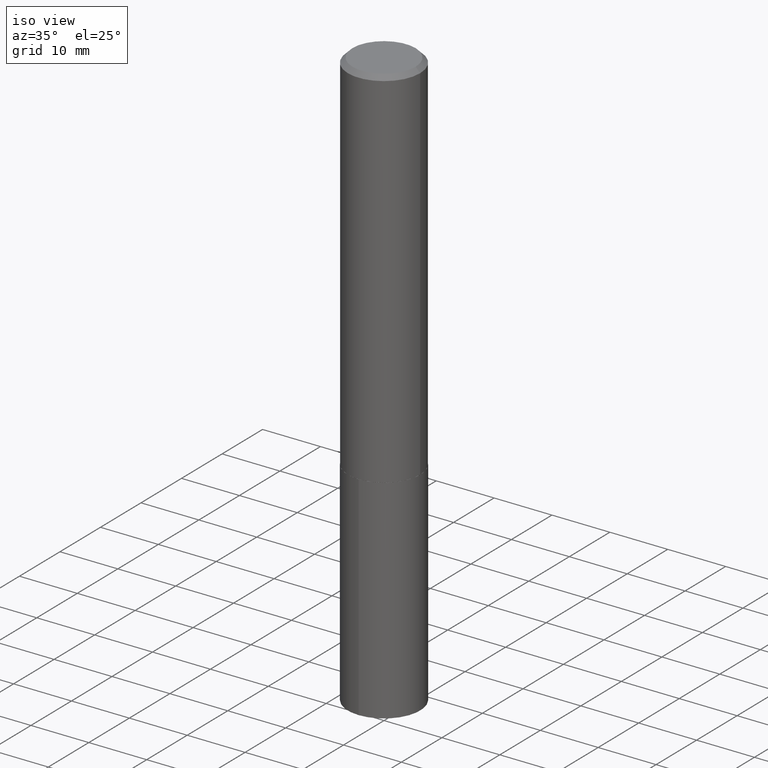
[diagram: clean part render]
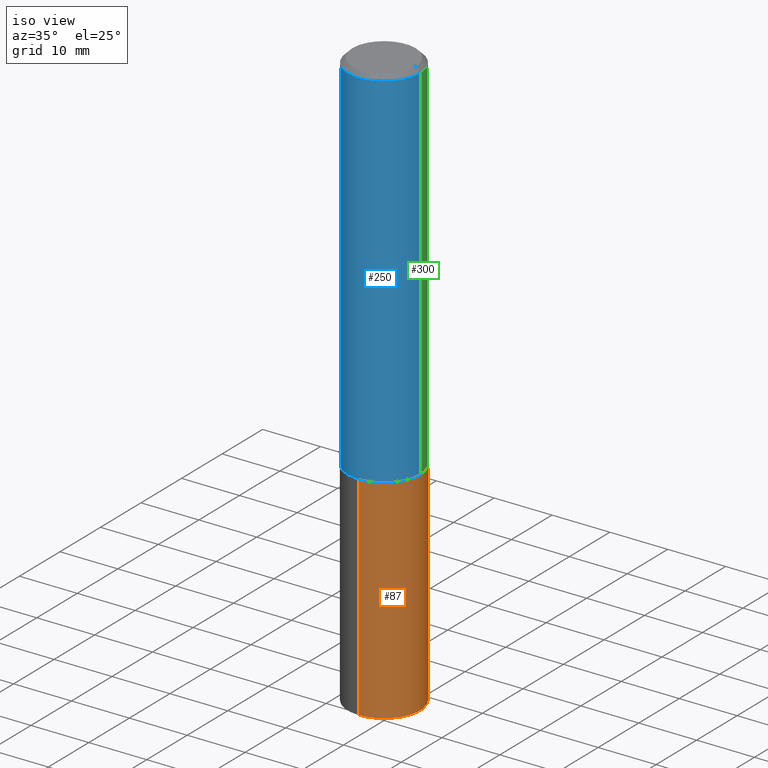
[diagram: same view with three faces highlighted in distinct colors, each labeled with its STEP entity id]
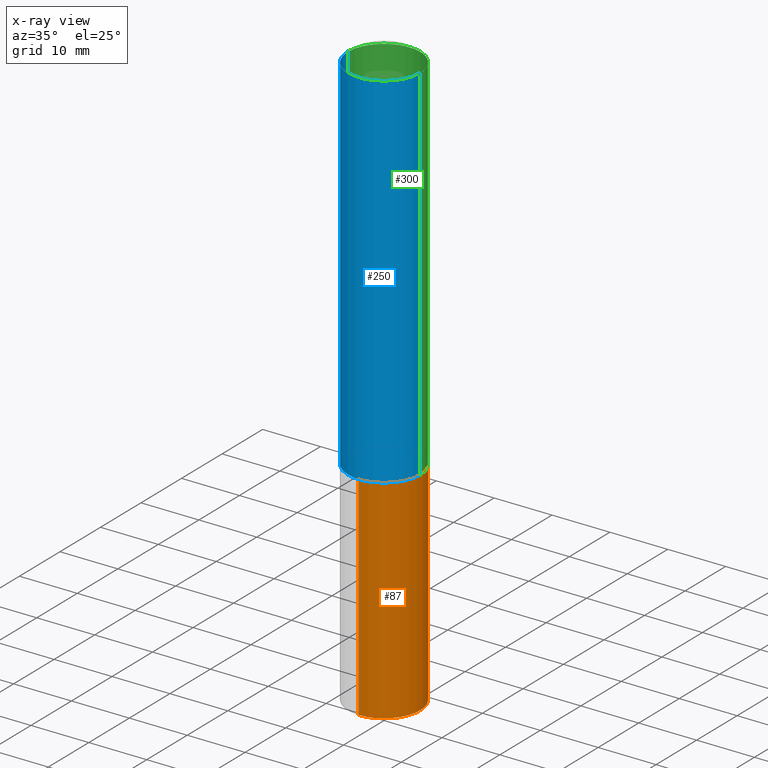
[diagram: x-ray of the same camera — body ghosted, the three highlighted faces saturated]
A machine part, iso view with three faces highlighted in distinct colors.
The next image is the same camera in x-ray (body ghosted, the three faces saturated) — at least one of them is partly hidden behind the body in this view.
Their STEP definitions:

[orange] entity #87 — the highlighted cylindrical surface (partial cylindrical patch) has radius 6.2497 mm, axis along (-0, 0, 1).
#21 = AXIS2_PLACEMENT_3D ( 'NONE', #212, #101, #189 ) ;
#27 = VERTEX_POINT ( 'NONE', #327 ) ;
#30 = ORIENTED_EDGE ( 'NONE', *, *, #109, .F. ) ;
#32 = CIRCLE ( 'NONE', #21, 0.2460499999999999909 ) ;
#38 = CARTESIAN_POINT ( 'NONE',  ( -1.718157966844644601E-15, -0.2460500000000087339, -2.499899999999999345 ) ) ;
#69 = CARTESIAN_POINT ( 'NONE',  ( 6.113427468582223828E-29, -8.728354198973981431E-15, -2.499900000000000233 ) ) ;
#73 = VECTOR ( 'NONE', #131, 39.37007874015748143 ) ;
#74 = LINE ( 'NONE', #315, #73 ) ;
#87 = ADVANCED_FACE ( 'NONE', ( #374 ), #96, .T. ) ;
#96 = CYLINDRICAL_SURFACE ( 'NONE', #377, 0.2460499999999999909 ) ;
#101 = DIRECTION ( 'NONE',  ( -2.445204930865101317E-29, 3.491859223320286804E-15, 1.000000000000000000 ) ) ;
#102 = EDGE_CURVE ( 'NONE', #27, #140, #32, .T. ) ;
#109 = EDGE_CURVE ( 'NONE', #202, #236, #167, .T. ) ;
#131 = DIRECTION ( 'NONE',  ( -2.445204930865101317E-29, 3.491859223320287199E-15, 1.000000000000000000 ) ) ;
#139 = EDGE_LOOP ( 'NONE', ( #347, #171, #30, #287 ) ) ;
#140 = VERTEX_POINT ( 'NONE', #215 ) ;
#154 = DIRECTION ( 'NONE',  ( -2.445204930865101317E-29, 3.491859223320286804E-15, 1.000000000000000000 ) ) ;
#167 = CIRCLE ( 'NONE', #216, 0.2460499999999999909 ) ;
#171 = ORIENTED_EDGE ( 'NONE', *, *, #237, .T. ) ;
#189 = DIRECTION ( 'NONE',  ( -6.982962677686265922E-15, -1.000000000000000000, 4.441126589984577246E-15 ) ) ;
#201 = VECTOR ( 'NONE', #274, 39.37007874015748143 ) ;
#202 = VERTEX_POINT ( 'NONE', #38 ) ;
#212 = CARTESIAN_POINT ( 'NONE',  ( 9.658659434360956272E-29, -1.379109997633285190E-14, -3.949771101202322665 ) ) ;
#215 = CARTESIAN_POINT ( 'NONE',  ( 1.748290401337823473E-15, 0.2460499999999862797, -3.949771101202323553 ) ) ;
#216 = AXIS2_PLACEMENT_3D ( 'NONE', #309, #154, #332 ) ;
#236 = VERTEX_POINT ( 'NONE', #338 ) ;
#237 = EDGE_CURVE ( 'NONE', #140, #236, #334, .T. ) ;
#240 = EDGE_CURVE ( 'NONE', #27, #202, #74, .T. ) ;
#274 = DIRECTION ( 'NONE',  ( -2.445204930865101317E-29, 3.491859223320287199E-15, 1.000000000000000000 ) ) ;
#287 = ORIENTED_EDGE ( 'NONE', *, *, #240, .F. ) ;
#309 = CARTESIAN_POINT ( 'NONE',  ( 6.113427468582223828E-29, -8.728354198973981431E-15, -2.499900000000000233 ) ) ;
#315 = CARTESIAN_POINT ( 'NONE',  ( -1.718157966844644601E-15, -0.2460500000000087339, -2.499899999999999345 ) ) ;
#327 = CARTESIAN_POINT ( 'NONE',  ( -1.718157966844609497E-15, -0.2460500000000138687, -3.949771101202321777 ) ) ;
#332 = DIRECTION ( 'NONE',  ( -6.982962677686265922E-15, -1.000000000000000000, 4.441126589984577246E-15 ) ) ;
#334 = LINE ( 'NONE', #340, #201 ) ;
#338 = CARTESIAN_POINT ( 'NONE',  ( 1.748290401337823078E-15, 0.2460499999999912479, -2.499900000000001565 ) ) ;
#340 = CARTESIAN_POINT ( 'NONE',  ( 1.748290401337787382E-15, 0.2460499999999912479, -2.499900000000001565 ) ) ;
#347 = ORIENTED_EDGE ( 'NONE', *, *, #102, .T. ) ;
#367 = DIRECTION ( 'NONE',  ( -2.445204930865101317E-29, 3.491859223320286804E-15, 1.000000000000000000 ) ) ;
#370 = DIRECTION ( 'NONE',  ( -6.982962677686265922E-15, -1.000000000000000000, 4.441126589984577246E-15 ) ) ;
#374 = FACE_OUTER_BOUND ( 'NONE', #139, .T. ) ;
#377 = AXIS2_PLACEMENT_3D ( 'NONE', #69, #367, #370 ) ;

[blue] entity #250 — the highlighted cylindrical surface (partial cylindrical patch) has radius 6.2497 mm, axis along (-0, 0, 1).
#2 = CIRCLE ( 'NONE', #312, 0.2460500000000002963 ) ;
#17 = CARTESIAN_POINT ( 'NONE',  ( 0.2460500000000001575, -1.718157966844706921E-15, 1.199783295684590764E-29 ) ) ;
#20 = ORIENTED_EDGE ( 'NONE', *, *, #112, .F. ) ;
#24 = EDGE_LOOP ( 'NONE', ( #20, #149, #351, #137 ) ) ;
#25 = EDGE_CURVE ( 'NONE', #267, #388, #72, .T. ) ;
#51 = DIRECTION ( 'NONE',  ( 1.000000000000000000, -6.982962677686265922E-15, 4.876176775795935793E-29 ) ) ;
#53 = CARTESIAN_POINT ( 'NONE',  ( 0.000000000000000000, 0.000000000000000000, 0.000000000000000000 ) ) ;
#70 = CARTESIAN_POINT ( 'NONE',  ( 0.2460499999999999909, -1.827266758683554839E-15, -0.03125000000000020123 ) ) ;
#72 = CIRCLE ( 'NONE', #175, 0.2460499999999999909 ) ;
#94 = AXIS2_PLACEMENT_3D ( 'NONE', #53, #284, #51 ) ;
#98 = LINE ( 'NONE', #17, #336 ) ;
#106 = EDGE_CURVE ( 'NONE', #182, #388, #98, .T. ) ;
#112 = EDGE_CURVE ( 'NONE', #199, #267, #123, .T. ) ;
#118 = CARTESIAN_POINT ( 'NONE',  ( 7.642090019328601786E-31, -1.091087918388490144E-16, -0.03125000000000020123 ) ) ;
#123 = LINE ( 'NONE', #272, #265 ) ;
#137 = ORIENTED_EDGE ( 'NONE', *, *, #25, .F. ) ;
#149 = ORIENTED_EDGE ( 'NONE', *, *, #352, .T. ) ;
#151 = DIRECTION ( 'NONE',  ( -2.445468806185136877E-29, 3.491481338843145188E-15, 1.000000000000000000 ) ) ;
#165 = CYLINDRICAL_SURFACE ( 'NONE', #94, 0.2460500000000001575 ) ;
#175 = AXIS2_PLACEMENT_3D ( 'NONE', #118, #268, #204 ) ;
#182 = VERTEX_POINT ( 'NONE', #303 ) ;
#195 = CARTESIAN_POINT ( 'NONE',  ( 6.112204734179131027E-29, -8.726608458304559138E-15, -2.499400000000000066 ) ) ;
#198 = DIRECTION ( 'NONE',  ( -2.445468806185136597E-29, 3.491481338843145583E-15, 1.000000000000000000 ) ) ;
#199 = VERTEX_POINT ( 'NONE', #249 ) ;
#204 = DIRECTION ( 'NONE',  ( 1.000000000000000000, -6.982962677686265922E-15, 0.000000000000000000 ) ) ;
#218 = DIRECTION ( 'NONE',  ( -2.445468806185136877E-29, 3.491481338843145188E-15, 1.000000000000000000 ) ) ;
#249 = CARTESIAN_POINT ( 'NONE',  ( -0.2460500000000002963, -6.978318056966829540E-15, -2.499400000000000066 ) ) ;
#250 = ADVANCED_FACE ( 'NONE', ( #348 ), #165, .T. ) ;
#252 = CARTESIAN_POINT ( 'NONE',  ( -0.2460499999999999909, -2.669568223733975704E-15, -0.03125000000000020123 ) ) ;
#265 = VECTOR ( 'NONE', #218, 39.37007874015748143 ) ;
#267 = VERTEX_POINT ( 'NONE', #252 ) ;
#268 = DIRECTION ( 'NONE',  ( -2.445468806185136597E-29, 3.491481338843145583E-15, 1.000000000000000000 ) ) ;
#272 = CARTESIAN_POINT ( 'NONE',  ( -0.2460500000000001575, 1.748290401337727626E-15, -1.210303978957220375E-29 ) ) ;
#284 = DIRECTION ( 'NONE',  ( -2.445468806185136597E-29, 3.491481338843145583E-15, 1.000000000000000000 ) ) ;
#303 = CARTESIAN_POINT ( 'NONE',  ( 0.2460500000000002963, -1.044476642514926527E-14, -2.499400000000000066 ) ) ;
#312 = AXIS2_PLACEMENT_3D ( 'NONE', #195, #198, #318 ) ;
#318 = DIRECTION ( 'NONE',  ( 1.000000000000000000, -6.982962677686261977E-15, 0.000000000000000000 ) ) ;
#336 = VECTOR ( 'NONE', #151, 39.37007874015748143 ) ;
#348 = FACE_OUTER_BOUND ( 'NONE', #24, .T. ) ;
#351 = ORIENTED_EDGE ( 'NONE', *, *, #106, .T. ) ;
#352 = EDGE_CURVE ( 'NONE', #199, #182, #2, .T. ) ;
#388 = VERTEX_POINT ( 'NONE', #70 ) ;

[green] entity #300 — the highlighted cylindrical surface (partial cylindrical patch) has radius 6.2497 mm, axis along (-0, 0, 1).
#13 = DIRECTION ( 'NONE',  ( 1.000000000000000000, -6.982962677686265922E-15, 0.000000000000000000 ) ) ;
#17 = CARTESIAN_POINT ( 'NONE',  ( 0.2460500000000001575, -1.718157966844706921E-15, 1.199783295684590764E-29 ) ) ;
#35 = CIRCLE ( 'NONE', #230, 0.2460499999999999909 ) ;
#55 = DIRECTION ( 'NONE',  ( 1.000000000000000000, -6.982962677686265922E-15, 4.876176775795935793E-29 ) ) ;
#56 = ORIENTED_EDGE ( 'NONE', *, *, #203, .F. ) ;
#70 = CARTESIAN_POINT ( 'NONE',  ( 0.2460499999999999909, -1.827266758683554839E-15, -0.03125000000000020123 ) ) ;
#98 = LINE ( 'NONE', #17, #336 ) ;
#104 = CARTESIAN_POINT ( 'NONE',  ( 6.112204734179131027E-29, -8.726608458304559138E-15, -2.499400000000000066 ) ) ;
#106 = EDGE_CURVE ( 'NONE', #182, #388, #98, .T. ) ;
#108 = FACE_OUTER_BOUND ( 'NONE', #293, .T. ) ;
#112 = EDGE_CURVE ( 'NONE', #199, #267, #123, .T. ) ;
#113 = ORIENTED_EDGE ( 'NONE', *, *, #357, .T. ) ;
#122 = CIRCLE ( 'NONE', #128, 0.2460500000000002963 ) ;
#123 = LINE ( 'NONE', #272, #265 ) ;
#128 = AXIS2_PLACEMENT_3D ( 'NONE', #104, #136, #257 ) ;
#136 = DIRECTION ( 'NONE',  ( -2.445468806185136597E-29, 3.491481338843145583E-15, 1.000000000000000000 ) ) ;
#147 = ORIENTED_EDGE ( 'NONE', *, *, #106, .F. ) ;
#151 = DIRECTION ( 'NONE',  ( -2.445468806185136877E-29, 3.491481338843145188E-15, 1.000000000000000000 ) ) ;
#182 = VERTEX_POINT ( 'NONE', #303 ) ;
#187 = DIRECTION ( 'NONE',  ( -2.445468806185136597E-29, 3.491481338843145583E-15, 1.000000000000000000 ) ) ;
#199 = VERTEX_POINT ( 'NONE', #249 ) ;
#203 = EDGE_CURVE ( 'NONE', #388, #267, #35, .T. ) ;
#218 = DIRECTION ( 'NONE',  ( -2.445468806185136877E-29, 3.491481338843145188E-15, 1.000000000000000000 ) ) ;
#230 = AXIS2_PLACEMENT_3D ( 'NONE', #372, #187, #13 ) ;
#248 = AXIS2_PLACEMENT_3D ( 'NONE', #345, #379, #55 ) ;
#249 = CARTESIAN_POINT ( 'NONE',  ( -0.2460500000000002963, -6.978318056966829540E-15, -2.499400000000000066 ) ) ;
#252 = CARTESIAN_POINT ( 'NONE',  ( -0.2460499999999999909, -2.669568223733975704E-15, -0.03125000000000020123 ) ) ;
#255 = CYLINDRICAL_SURFACE ( 'NONE', #248, 0.2460500000000001575 ) ;
#257 = DIRECTION ( 'NONE',  ( 1.000000000000000000, -6.982962677686261977E-15, 0.000000000000000000 ) ) ;
#265 = VECTOR ( 'NONE', #218, 39.37007874015748143 ) ;
#267 = VERTEX_POINT ( 'NONE', #252 ) ;
#272 = CARTESIAN_POINT ( 'NONE',  ( -0.2460500000000001575, 1.748290401337727626E-15, -1.210303978957220375E-29 ) ) ;
#283 = ORIENTED_EDGE ( 'NONE', *, *, #112, .T. ) ;
#293 = EDGE_LOOP ( 'NONE', ( #113, #283, #56, #147 ) ) ;
#300 = ADVANCED_FACE ( 'NONE', ( #108 ), #255, .T. ) ;
#303 = CARTESIAN_POINT ( 'NONE',  ( 0.2460500000000002963, -1.044476642514926527E-14, -2.499400000000000066 ) ) ;
#336 = VECTOR ( 'NONE', #151, 39.37007874015748143 ) ;
#345 = CARTESIAN_POINT ( 'NONE',  ( 0.000000000000000000, 0.000000000000000000, 0.000000000000000000 ) ) ;
#357 = EDGE_CURVE ( 'NONE', #182, #199, #122, .T. ) ;
#372 = CARTESIAN_POINT ( 'NONE',  ( 7.642090019328601786E-31, -1.091087918388490144E-16, -0.03125000000000020123 ) ) ;
#379 = DIRECTION ( 'NONE',  ( -2.445468806185136597E-29, 3.491481338843145583E-15, 1.000000000000000000 ) ) ;
#388 = VERTEX_POINT ( 'NONE', #70 ) ;